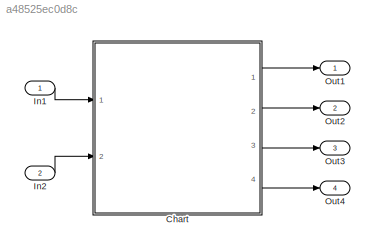
MODEL slx_a48525ec0d8c
KIND model
CONFIG AbsTol = auto
CONFIG EnableMultiTasking = off
CONFIG FixedStep = auto
CONFIG MaxStep = auto
CONFIG MinStep = auto
CONFIG RelTol = 1e-3
CONFIG SampleTimeConstraint = Unconstrained
CONFIG Solver = FixedStepDiscrete
CONFIG SolverName = FixedStepDiscrete
CONFIG StartTime = 0.0
CONFIG StopTime = 10.0
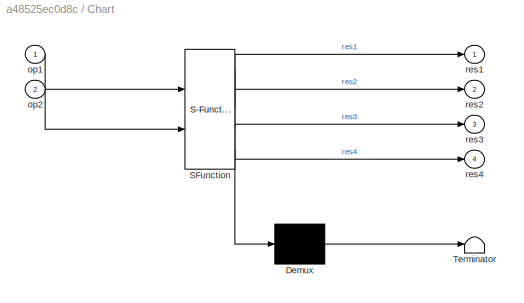
BLOCK [SubSystem] Chart
  ErrorFcn = Stateflow.Translate.translate
  PermitHierarchicalResolution = ExplicitOnly
  Ports = [2, 4]
  RequestExecContextInheritance = off
  SFBlockType = Chart
  TreatAsAtomicUnit = on
  Variant = off
BLOCK [Demux] Chart/ Demux 
  Outputs = 1
  Ports = [1, 1]
BLOCK [S-Function] Chart/ SFunction 
  EnableBusSupport = on
  FunctionName = sf_sfun
  PortCounts = [2 5]
  Ports = [2, 5]
  SFcnIsStateOwnerBlock = off
  SFunctionDeploymentMode = off
  Tag = Stateflow S-Function finalll 3
BLOCK [Terminator] Chart/ Terminator 
BLOCK [Inport] Chart/op1
  IconDisplay = Port number
BLOCK [Inport] Chart/op2
  IconDisplay = Port number
  Port = 2
BLOCK [Outport] Chart/res1
  IconDisplay = Port number
BLOCK [Outport] Chart/res2
  IconDisplay = Port number
  Port = 2
BLOCK [Outport] Chart/res3
  IconDisplay = Port number
  Port = 3
BLOCK [Outport] Chart/res4
  IconDisplay = Port number
  Port = 4
BLOCK [Inport] In1
  IconDisplay = Port number
BLOCK [Inport] In2
  IconDisplay = Port number
  Port = 2
BLOCK [Outport] Out1
  IconDisplay = Port number
BLOCK [Outport] Out2
  IconDisplay = Port number
  Port = 2
BLOCK [Outport] Out3
  IconDisplay = Port number
  Port = 3
BLOCK [Outport] Out4
  IconDisplay = Port number
  Port = 4
LINE Chart:1 -> Out1:1
LINE Chart:2 -> Out2:1
LINE Chart:3 -> Out3:1
LINE Chart:4 -> Out4:1
LINE In1:1 -> Chart:1
LINE In2:1 -> Chart:2
CHART Chart states=4 transitions=6
  STATE_LABEL 'addRes  = Add(  num1, num2)'
  STATE_LABEL '{addRes= num1+num2;}'
  STATE_LABEL 'subRes  = Sub(  num1, num2)'
  STATE_LABEL '{subRes= num1-num2;}'
  STATE_LABEL 'mulRes  = Mul(  num1, num2)'
  STATE_LABEL '{mulRes= num1*num2;}'
  STATE_LABEL 'divRes  = Div(  num1, num2)'
  STATE_LABEL '{divRes= num1/num2;}'
